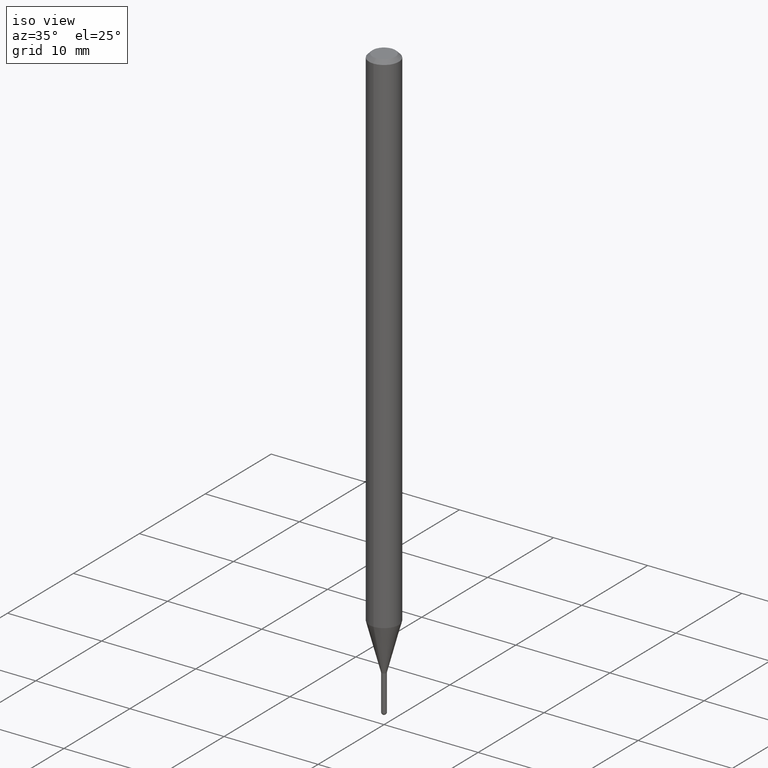
[diagram: clean part render]
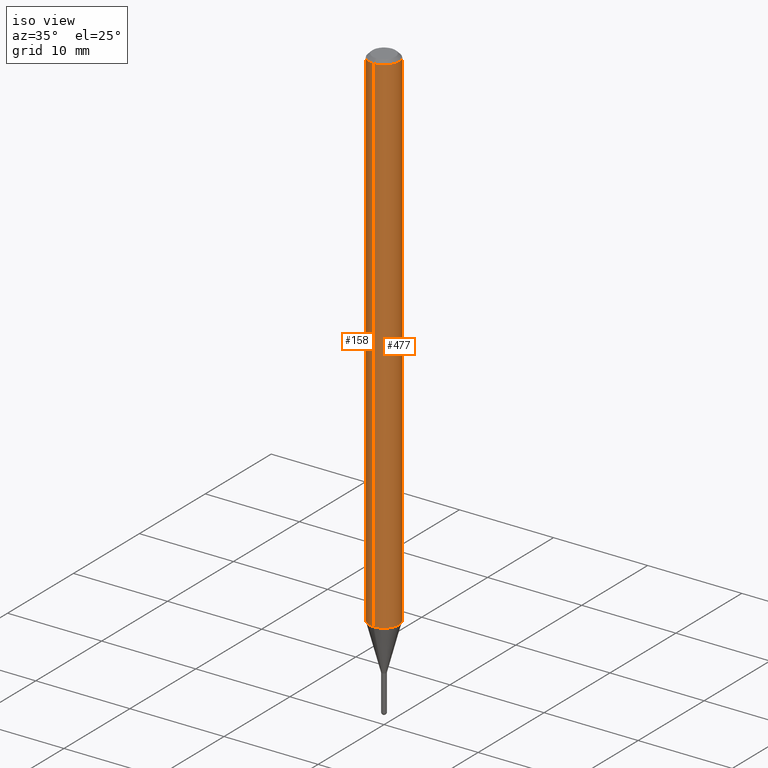
[diagram: same view with one multi-face feature highlighted, each face labeled with its STEP entity id]
A machine part, iso view. The highlighted faces form ONE feature: a constant-radius fillet chain: 2 tangent blend faces with common blend radius 1.5875 mm. The faces share edges in the B-rep.
Their STEP definitions:
[1] entity #477 (Cylinder):
#8 = CARTESIAN_POINT ( 'NONE',  ( 0.000000000000000000, 0.000000000000000000, 0.000000000000000000 ) ) ;
#12 = DIRECTION ( 'NONE',  ( -2.445532582001462791E-29, 3.491390008244273026E-15, 1.000000000000000000 ) ) ;
#28 = AXIS2_PLACEMENT_3D ( 'NONE', #8, #125, #163 ) ;
#29 = ORIENTED_EDGE ( 'NONE', *, *, #73, .T. ) ;
#44 = CYLINDRICAL_SURFACE ( 'NONE', #28, 0.06250000000000000000 ) ;
#68 = DIRECTION ( 'NONE',  ( -2.445532582001462791E-29, 3.491390008244272632E-15, 1.000000000000000000 ) ) ;
#73 = EDGE_CURVE ( 'NONE', #283, #114, #486, .T. ) ;
#102 = CARTESIAN_POINT ( 'NONE',  ( 4.440892098501153712E-16, 0.06249999999999995143, -0.01500000000000022669 ) ) ;
#114 = VERTEX_POINT ( 'NONE', #102 ) ;
#125 = DIRECTION ( 'NONE',  ( -2.445532582001462791E-29, 3.491390008244272632E-15, 1.000000000000000000 ) ) ;
#132 = CARTESIAN_POINT ( 'NONE',  ( 4.440892098500625669E-16, 0.06250000000000000000, -2.182118755152670395E-16 ) ) ;
#152 = CARTESIAN_POINT ( 'NONE',  ( -4.364351673553393088E-16, -0.06250000000000749401, -2.144067332602638931 ) ) ;
#163 = DIRECTION ( 'NONE',  ( -6.982962677686265922E-15, -1.000000000000000000, 3.491390008244272632E-15 ) ) ;
#170 = CARTESIAN_POINT ( 'NONE',  ( -4.364351673553916201E-16, -0.06250000000000000000, 2.182118755152670395E-16 ) ) ;
#186 = DIRECTION ( 'NONE',  ( -6.982962677686265922E-15, -1.000000000000000000, 3.483106191921935554E-15 ) ) ;
#198 = CARTESIAN_POINT ( 'NONE',  ( -4.364351673553912750E-16, -0.06250000000000005551, -0.01499999999999979128 ) ) ;
#211 = FACE_OUTER_BOUND ( 'NONE', #504, .T. ) ;
#216 = LINE ( 'NONE', #170, #255 ) ;
#233 = EDGE_CURVE ( 'NONE', #358, #114, #392, .T. ) ;
#248 = AXIS2_PLACEMENT_3D ( 'NONE', #263, #343, #491 ) ;
#255 = VECTOR ( 'NONE', #266, 39.37007874015748143 ) ;
#263 = CARTESIAN_POINT ( 'NONE',  ( 5.243386519884720525E-29, -7.485775262051803543E-15, -2.144067332602638931 ) ) ;
#265 = CIRCLE ( 'NONE', #248, 0.06250000000000000000 ) ;
#266 = DIRECTION ( 'NONE',  ( -2.445532582001462791E-29, 3.491390008244273026E-15, 1.000000000000000000 ) ) ;
#267 = VERTEX_POINT ( 'NONE', #152 ) ;
#283 = VERTEX_POINT ( 'NONE', #436 ) ;
#285 = CARTESIAN_POINT ( 'NONE',  ( 3.668298873002196219E-31, -5.237085012366411782E-17, -0.01500000000000000812 ) ) ;
#287 = VECTOR ( 'NONE', #12, 39.37007874015748143 ) ;
#295 = ORIENTED_EDGE ( 'NONE', *, *, #385, .F. ) ;
#343 = DIRECTION ( 'NONE',  ( -2.445532582001462791E-29, 3.491390008244272632E-15, 1.000000000000000000 ) ) ;
#358 = VERTEX_POINT ( 'NONE', #198 ) ;
#385 = EDGE_CURVE ( 'NONE', #267, #358, #216, .T. ) ;
#392 = CIRCLE ( 'NONE', #453, 0.06250000000000000000 ) ;
#434 = ORIENTED_EDGE ( 'NONE', *, *, #435, .T. ) ;
#435 = EDGE_CURVE ( 'NONE', #267, #283, #265, .T. ) ;
#436 = CARTESIAN_POINT ( 'NONE',  ( 4.440892098501148782E-16, 0.06249999999999250599, -2.144067332602639375 ) ) ;
#453 = AXIS2_PLACEMENT_3D ( 'NONE', #285, #68, #186 ) ;
#455 = ORIENTED_EDGE ( 'NONE', *, *, #233, .F. ) ;
#477 = ADVANCED_FACE ( 'NONE', ( #211 ), #44, .T. ) ;
#486 = LINE ( 'NONE', #132, #287 ) ;
#491 = DIRECTION ( 'NONE',  ( -6.982962677686265922E-15, -1.000000000000000000, 4.370956789862821150E-15 ) ) ;
#504 = EDGE_LOOP ( 'NONE', ( #434, #29, #455, #295 ) ) ;
[2] entity #158 (Cylinder):
#12 = DIRECTION ( 'NONE',  ( -2.445532582001462791E-29, 3.491390008244273026E-15, 1.000000000000000000 ) ) ;
#15 = ORIENTED_EDGE ( 'NONE', *, *, #385, .T. ) ;
#48 = EDGE_CURVE ( 'NONE', #283, #267, #331, .T. ) ;
#73 = EDGE_CURVE ( 'NONE', #283, #114, #486, .T. ) ;
#79 = AXIS2_PLACEMENT_3D ( 'NONE', #320, #153, #366 ) ;
#102 = CARTESIAN_POINT ( 'NONE',  ( 4.440892098501153712E-16, 0.06249999999999995143, -0.01500000000000022669 ) ) ;
#114 = VERTEX_POINT ( 'NONE', #102 ) ;
#132 = CARTESIAN_POINT ( 'NONE',  ( 4.440892098500625669E-16, 0.06250000000000000000, -2.182118755152670395E-16 ) ) ;
#152 = CARTESIAN_POINT ( 'NONE',  ( -4.364351673553393088E-16, -0.06250000000000749401, -2.144067332602638931 ) ) ;
#153 = DIRECTION ( 'NONE',  ( -2.445532582001462791E-29, 3.491390008244272632E-15, 1.000000000000000000 ) ) ;
#158 = ADVANCED_FACE ( 'NONE', ( #472 ), #200, .T. ) ;
#170 = CARTESIAN_POINT ( 'NONE',  ( -4.364351673553916201E-16, -0.06250000000000000000, 2.182118755152670395E-16 ) ) ;
#178 = CARTESIAN_POINT ( 'NONE',  ( 5.243386519884720525E-29, -7.485775262051803543E-15, -2.144067332602638931 ) ) ;
#197 = ORIENTED_EDGE ( 'NONE', *, *, #48, .T. ) ;
#198 = CARTESIAN_POINT ( 'NONE',  ( -4.364351673553912750E-16, -0.06250000000000005551, -0.01499999999999979128 ) ) ;
#200 = CYLINDRICAL_SURFACE ( 'NONE', #410, 0.06250000000000000000 ) ;
#201 = EDGE_CURVE ( 'NONE', #114, #358, #487, .T. ) ;
#215 = DIRECTION ( 'NONE',  ( -2.445532582001462791E-29, 3.491390008244272632E-15, 1.000000000000000000 ) ) ;
#216 = LINE ( 'NONE', #170, #255 ) ;
#255 = VECTOR ( 'NONE', #266, 39.37007874015748143 ) ;
#266 = DIRECTION ( 'NONE',  ( -2.445532582001462791E-29, 3.491390008244273026E-15, 1.000000000000000000 ) ) ;
#267 = VERTEX_POINT ( 'NONE', #152 ) ;
#283 = VERTEX_POINT ( 'NONE', #436 ) ;
#287 = VECTOR ( 'NONE', #12, 39.37007874015748143 ) ;
#291 = EDGE_LOOP ( 'NONE', ( #319, #197, #15, #309 ) ) ;
#309 = ORIENTED_EDGE ( 'NONE', *, *, #201, .F. ) ;
#319 = ORIENTED_EDGE ( 'NONE', *, *, #73, .F. ) ;
#320 = CARTESIAN_POINT ( 'NONE',  ( 3.668298873002196219E-31, -5.237085012366411782E-17, -0.01500000000000000812 ) ) ;
#331 = CIRCLE ( 'NONE', #371, 0.06250000000000000000 ) ;
#358 = VERTEX_POINT ( 'NONE', #198 ) ;
#359 = DIRECTION ( 'NONE',  ( -6.982962677686265922E-15, -1.000000000000000000, 3.491390008244272632E-15 ) ) ;
#366 = DIRECTION ( 'NONE',  ( -6.982962677686265922E-15, -1.000000000000000000, 3.483106191921935554E-15 ) ) ;
#371 = AXIS2_PLACEMENT_3D ( 'NONE', #178, #215, #463 ) ;
#385 = EDGE_CURVE ( 'NONE', #267, #358, #216, .T. ) ;
#410 = AXIS2_PLACEMENT_3D ( 'NONE', #432, #509, #359 ) ;
#432 = CARTESIAN_POINT ( 'NONE',  ( 0.000000000000000000, 0.000000000000000000, 0.000000000000000000 ) ) ;
#436 = CARTESIAN_POINT ( 'NONE',  ( 4.440892098501148782E-16, 0.06249999999999250599, -2.144067332602639375 ) ) ;
#463 = DIRECTION ( 'NONE',  ( -6.982962677686265922E-15, -1.000000000000000000, 4.370956789862821150E-15 ) ) ;
#472 = FACE_OUTER_BOUND ( 'NONE', #291, .T. ) ;
#486 = LINE ( 'NONE', #132, #287 ) ;
#487 = CIRCLE ( 'NONE', #79, 0.06250000000000000000 ) ;
#509 = DIRECTION ( 'NONE',  ( -2.445532582001462791E-29, 3.491390008244272632E-15, 1.000000000000000000 ) ) ;